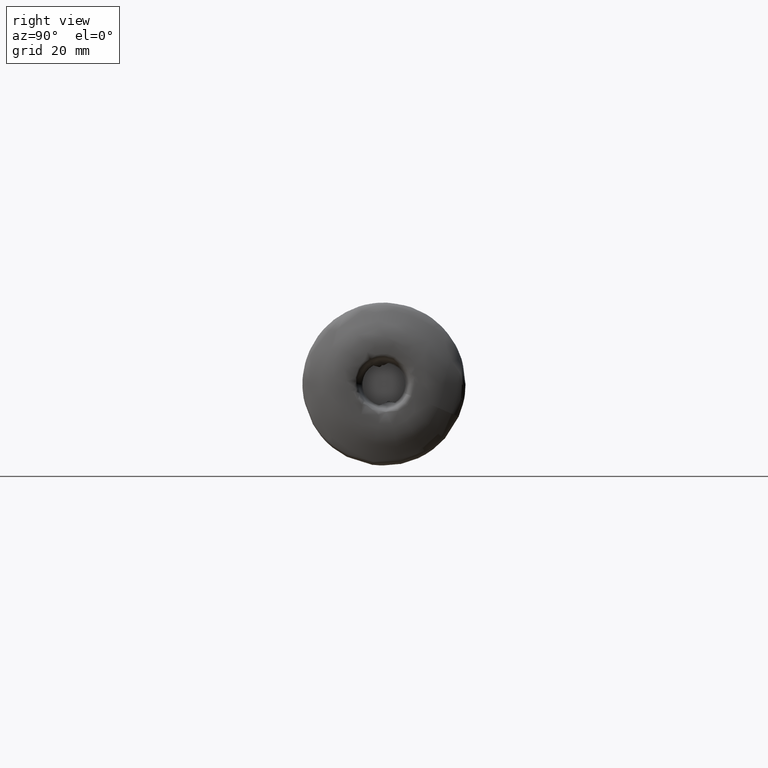
[diagram: clean part render]
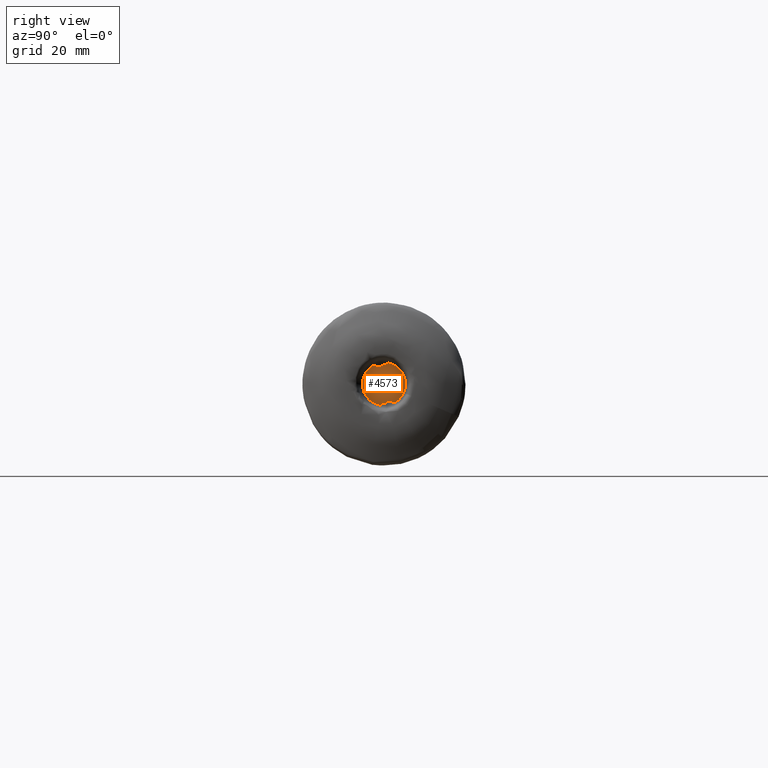
[diagram: same view with one face highlighted and labeled with its STEP entity id]
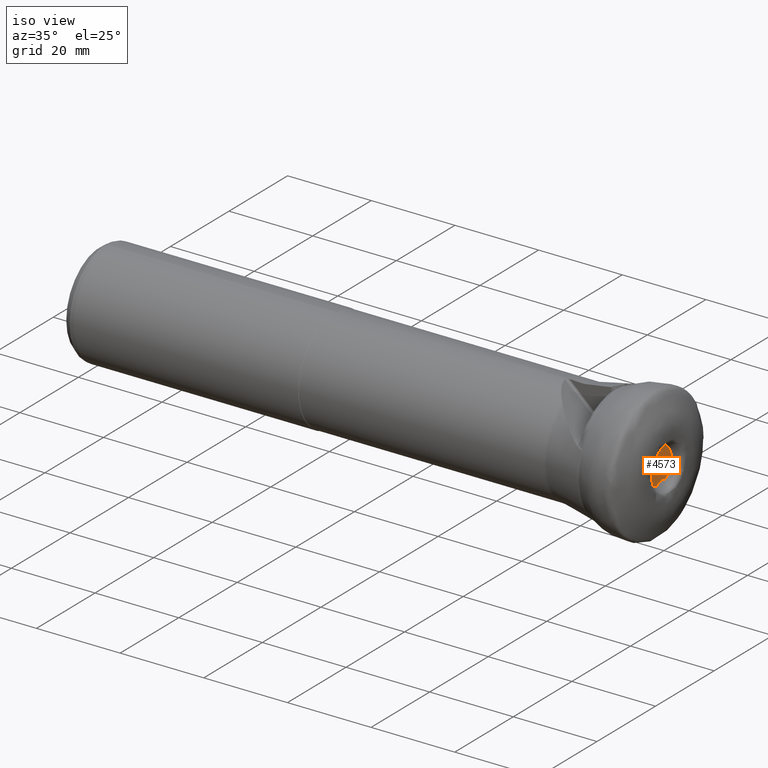
[diagram: same view with one face highlighted and labeled with its STEP entity id]
A machine part, right view. The second image highlights one B-rep face of the part: STEP entity #4573.
A second angle (iso view) of the same face is appended — the face is thin or edge-on in the first view.
In plain terms, the highlighted planar face has unit normal (-1, 0, 0).
Its self-contained STEP definition (entity closure, byte-faithful):
#51 = CARTESIAN_POINT ( 'NONE',  ( -1.155259177039453800, 4.229499999999999800, 0.0000000000000000000 ) ) ;
#104 = DIRECTION ( 'NONE',  ( 0.0000000000000000000, 1.000000000000000000, 0.0000000000000000000 ) ) ;
#177 = ORIENTED_EDGE ( 'NONE', *, *, #4134, .F. ) ;
#215 = EDGE_CURVE ( 'NONE', #5216, #4179, #4383, .T. ) ;
#240 = DIRECTION ( 'NONE',  ( -3.134654851948420700E-033, -1.000000000000000000, 0.0000000000000000000 ) ) ;
#263 = CARTESIAN_POINT ( 'NONE',  ( -1.155259177039453800, -1.057895020233251300, 3.363004518139326700 ) ) ;
#292 = CARTESIAN_POINT ( 'NONE',  ( -1.155259177039453800, 0.3577621035069397700, -3.700133696708830700 ) ) ;
#297 = CARTESIAN_POINT ( 'NONE',  ( -1.155259177039436500, -0.4605350337450229100, 3.663512974220145300 ) ) ;
#340 = CARTESIAN_POINT ( 'NONE',  ( -1.155259177039453600, -0.3577621035069391600, 3.700133696708831600 ) ) ;
#342 = VERTEX_POINT ( 'NONE', #1795 ) ;
#381 = CARTESIAN_POINT ( 'NONE',  ( -1.155259177039453800, -0.5574995362521545400, 3.409578925042161300 ) ) ;
#411 = LINE ( 'NONE', #1369, #2676 ) ;
#413 = CARTESIAN_POINT ( 'NONE',  ( -1.155259177039452700, 0.3219396347229398500, -3.699660229879655000 ) ) ;
#419 = VERTEX_POINT ( 'NONE', #1947 ) ;
#472 = ORIENTED_EDGE ( 'NONE', *, *, #4212, .T. ) ;
#594 = CARTESIAN_POINT ( 'NONE',  ( -1.155259177039453600, 0.5419068643361471000, 4.020709625863943000 ) ) ;
#599 = EDGE_LOOP ( 'NONE', ( #4087, #1148, #2869, #5679, #3941, #2752, #4371, #1103, #5830, #3220, #177, #472, #3172, #1124 ) ) ;
#614 = CARTESIAN_POINT ( 'NONE',  ( -1.155259177039453800, 3.103657154950918400, -3.946597512982972700 ) ) ;
#652 = VECTOR ( 'NONE', #5196, 1000.000000000000100 ) ;
#722 =( BOUNDED_CURVE ( )  B_SPLINE_CURVE ( 3, ( #4602, #3699, #4932, #413 ),
 .UNSPECIFIED., .F., .T. ) 
 B_SPLINE_CURVE_WITH_KNOTS ( ( 4, 4 ),
 ( 5.917845889518014600, 6.642502831510523900 ),
 .UNSPECIFIED. ) 
 CURVE ( )  GEOMETRIC_REPRESENTATION_ITEM ( )  RATIONAL_B_SPLINE_CURVE ( ( 1.000000000000000000, 0.9567160179822417100, 0.9567160179822417100, 1.000000000000000000 ) ) 
 REPRESENTATION_ITEM ( '' )  );
#999 = EDGE_CURVE ( 'NONE', #342, #2275, #3994, .T. ) ;
#1011 = VERTEX_POINT ( 'NONE', #3826 ) ;
#1103 = ORIENTED_EDGE ( 'NONE', *, *, #3354, .F. ) ;
#1124 = ORIENTED_EDGE ( 'NONE', *, *, #2398, .T. ) ;
#1148 = ORIENTED_EDGE ( 'NONE', *, *, #1978, .T. ) ;
#1280 = DIRECTION ( 'NONE',  ( 2.952798561252761600E-033, 0.9419852266725243800, 0.3356543351883196600 ) ) ;
#1313 = CARTESIAN_POINT ( 'NONE',  ( -1.155259177039453800, 2.542767924703493800, 4.733669521630202000 ) ) ;
#1369 = CARTESIAN_POINT ( 'NONE',  ( -1.155259177039453800, 4.179927508716351900, -3.750651391229171700 ) ) ;
#1604 = CIRCLE ( 'NONE', #2830, 4.229499999999999800 ) ;
#1698 = EDGE_CURVE ( 'NONE', #342, #3078, #4257, .T. ) ;
#1735 = LINE ( 'NONE', #4973, #3088 ) ;
#1758 = CARTESIAN_POINT ( 'NONE',  ( -1.155259177039454200, -0.8725339688979579800, -4.138520837584265700 ) ) ;
#1795 = CARTESIAN_POINT ( 'NONE',  ( -1.155259177039436500, -0.4605350337450229100, 3.663512974220145300 ) ) ;
#1874 = VECTOR ( 'NONE', #2081, 1000.000000000000100 ) ;
#1947 = CARTESIAN_POINT ( 'NONE',  ( -1.155259177039454200, 0.8725339688979573100, 4.138520837584265700 ) ) ;
#1978 = EDGE_CURVE ( 'NONE', #2525, #5827, #4699, .T. ) ;
#2028 = VERTEX_POINT ( 'NONE', #3042 ) ;
#2060 =( BOUNDED_CURVE ( )  B_SPLINE_CURVE ( 3, ( #2526, #2445, #2417, #2409 ),
 .UNSPECIFIED., .F., .F. ) 
 B_SPLINE_CURVE_WITH_KNOTS ( ( 4, 4 ),
 ( 5.439867864304302400, 6.904302219309673900 ),
 .UNSPECIFIED. ) 
 CURVE ( )  GEOMETRIC_REPRESENTATION_ITEM ( )  RATIONAL_B_SPLINE_CURVE ( ( 1.000000000000000000, 0.8291293357417108800, 0.8291293357417108800, 1.000000000000000000 ) ) 
 REPRESENTATION_ITEM ( '' )  );
#2074 = EDGE_CURVE ( 'NONE', #2028, #3502, #722, .T. ) ;
#2081 = DIRECTION ( 'NONE',  ( 3.014399828765373000E-033, 0.9616369173440896300, -0.2743254257281971300 ) ) ;
#2275 = VERTEX_POINT ( 'NONE', #4007 ) ;
#2317 = EDGE_CURVE ( 'NONE', #3502, #3068, #411, .T. ) ;
#2353 = DIRECTION ( 'NONE',  ( 1.000000000000000000, -3.134654851948420700E-033, -0.0000000000000000000 ) ) ;
#2398 = EDGE_CURVE ( 'NONE', #4179, #419, #2516, .T. ) ;
#2409 = CARTESIAN_POINT ( 'NONE',  ( -1.155259177039453800, 1.057895020233252700, -3.363004518139326200 ) ) ;
#2417 = CARTESIAN_POINT ( 'NONE',  ( -1.155259177039453800, 0.7976550667737594100, -3.288766066248950600 ) ) ;
#2445 = CARTESIAN_POINT ( 'NONE',  ( -1.155259177039453800, 0.5574995362521542000, -3.409578925042161800 ) ) ;
#2469 = LINE ( 'NONE', #4872, #652 ) ;
#2481 = CARTESIAN_POINT ( 'NONE',  ( -1.155259177039452700, -0.3219396347229396300, 3.699660229879655000 ) ) ;
#2485 = EDGE_CURVE ( 'NONE', #1011, #3788, #1604, .T. ) ;
#2516 = CIRCLE ( 'NONE', #5675, 4.229499999999999800 ) ;
#2525 = VERTEX_POINT ( 'NONE', #594 ) ;
#2526 = CARTESIAN_POINT ( 'NONE',  ( -1.155259177039433100, 0.4605350337450231400, -3.663512974220146200 ) ) ;
#2676 = VECTOR ( 'NONE', #3461, 1000.000000000000200 ) ;
#2734 = CARTESIAN_POINT ( 'NONE',  ( -1.155259177039452700, 0.3219396347229398500, -3.699660229879655000 ) ) ;
#2752 = ORIENTED_EDGE ( 'NONE', *, *, #4608, .T. ) ;
#2753 = CARTESIAN_POINT ( 'NONE',  ( -1.155259177039454700, 2.112850044108244100, -3.663950728532220600 ) ) ;
#2822 = DIRECTION ( 'NONE',  ( -1.000000000000000000, 3.134654851948420700E-033, 0.0000000000000000000 ) ) ;
#2830 = AXIS2_PLACEMENT_3D ( 'NONE', #5841, #2992, #2983 ) ;
#2869 = ORIENTED_EDGE ( 'NONE', *, *, #5357, .T. ) ;
#2924 = CARTESIAN_POINT ( 'NONE',  ( -1.155259177039454700, -6.534835507953070500E-005, 3.695406006121957800 ) ) ;
#2925 = CARTESIAN_POINT ( 'NONE',  ( -1.155259177039452700, -0.3219396347229396300, 3.699660229879655000 ) ) ;
#2932 = CARTESIAN_POINT ( 'NONE',  ( -1.155259177039454700, 0.3009109367780925500, 3.807264136765363000 ) ) ;
#2937 = VECTOR ( 'NONE', #4192, 1000.000000000000100 ) ;
#2948 = CARTESIAN_POINT ( 'NONE',  ( -1.155259177039453600, 0.5419068643361471000, 4.020709625863943000 ) ) ;
#2983 = DIRECTION ( 'NONE',  ( 0.0000000000000000000, 1.000000000000000000, 0.0000000000000000000 ) ) ;
#2992 = DIRECTION ( 'NONE',  ( 1.000000000000000000, -3.134654851948420700E-033, -0.0000000000000000000 ) ) ;
#3042 = CARTESIAN_POINT ( 'NONE',  ( -1.155259177039453600, -0.5419068643361464300, -4.020709625863943000 ) ) ;
#3068 = VERTEX_POINT ( 'NONE', #292 ) ;
#3078 = VERTEX_POINT ( 'NONE', #340 ) ;
#3088 = VECTOR ( 'NONE', #4934, 1000.000000000000200 ) ;
#3109 = DIRECTION ( 'NONE',  ( -2.952798561252761600E-033, -0.9419852266725243800, -0.3356543351883196600 ) ) ;
#3132 = CARTESIAN_POINT ( 'NONE',  ( -1.155259177039453800, 4.963208714227405900, -2.059090847419985600 ) ) ;
#3156 = AXIS2_PLACEMENT_3D ( 'NONE', #51, #2822, #240 ) ;
#3172 = ORIENTED_EDGE ( 'NONE', *, *, #215, .T. ) ;
#3220 = ORIENTED_EDGE ( 'NONE', *, *, #2317, .T. ) ;
#3354 = EDGE_CURVE ( 'NONE', #2028, #3788, #2469, .T. ) ;
#3461 = DIRECTION ( 'NONE',  ( 3.134381091358714700E-033, 0.9999126664329454100, -0.01321588086194062200 ) ) ;
#3502 = VERTEX_POINT ( 'NONE', #2734 ) ;
#3603 = PLANE ( 'NONE',  #3156 ) ;
#3699 = CARTESIAN_POINT ( 'NONE',  ( -1.155259177039454700, -0.3009109367780916600, -3.807264136765362600 ) ) ;
#3741 = CARTESIAN_POINT ( 'NONE',  ( -1.155259177039453800, -0.7976550667737593000, 3.288766066248949700 ) ) ;
#3788 = VERTEX_POINT ( 'NONE', #1758 ) ;
#3826 = CARTESIAN_POINT ( 'NONE',  ( -1.155259177039454700, -2.112850044108244100, 3.663950728532220600 ) ) ;
#3853 = CARTESIAN_POINT ( 'NONE',  ( -1.155259177039453800, 4.718765543848189000, 1.715100990365442200 ) ) ;
#3941 = ORIENTED_EDGE ( 'NONE', *, *, #999, .T. ) ;
#3958 = CARTESIAN_POINT ( 'NONE',  ( -1.155259177039454200, -5.729202682956507300E-031, 0.0000000000000000000 ) ) ;
#3994 =( BOUNDED_CURVE ( )  B_SPLINE_CURVE ( 3, ( #297, #381, #3741, #263 ),
 .UNSPECIFIED., .F., .F. ) 
 B_SPLINE_CURVE_WITH_KNOTS ( ( 4, 4 ),
 ( 5.439867864304304100, 6.904302219309672100 ),
 .UNSPECIFIED. ) 
 CURVE ( )  GEOMETRIC_REPRESENTATION_ITEM ( )  RATIONAL_B_SPLINE_CURVE ( ( 1.000000000000000000, 0.8291293357417117700, 0.8291293357417117700, 1.000000000000000000 ) ) 
 REPRESENTATION_ITEM ( '' )  );
#3995 = VERTEX_POINT ( 'NONE', #4617 ) ;
#4007 = CARTESIAN_POINT ( 'NONE',  ( -1.155259177039453800, -1.057895020233251300, 3.363004518139326700 ) ) ;
#4087 = ORIENTED_EDGE ( 'NONE', *, *, #5965, .F. ) ;
#4132 = LINE ( 'NONE', #3853, #2937 ) ;
#4134 = EDGE_CURVE ( 'NONE', #3995, #3068, #5495, .T. ) ;
#4179 = VERTEX_POINT ( 'NONE', #2753 ) ;
#4192 = DIRECTION ( 'NONE',  ( -3.014399828765373000E-033, -0.9616369173440896300, 0.2743254257281971300 ) ) ;
#4212 = EDGE_CURVE ( 'NONE', #3995, #5216, #2060, .T. ) ;
#4257 = LINE ( 'NONE', #5886, #5368 ) ;
#4371 = ORIENTED_EDGE ( 'NONE', *, *, #2485, .T. ) ;
#4383 = LINE ( 'NONE', #614, #1874 ) ;
#4459 = DIRECTION ( 'NONE',  ( 2.952798561252761600E-033, 0.9419852266725243800, 0.3356543351883196600 ) ) ;
#4562 = VECTOR ( 'NONE', #1280, 1000.000000000000100 ) ;
#4573 = ADVANCED_FACE ( 'NONE', ( #5220 ), #3603, .F. ) ;
#4602 = CARTESIAN_POINT ( 'NONE',  ( -1.155259177039453600, -0.5419068643361464300, -4.020709625863943000 ) ) ;
#4608 = EDGE_CURVE ( 'NONE', #2275, #1011, #4132, .T. ) ;
#4617 = CARTESIAN_POINT ( 'NONE',  ( -1.155259177039433100, 0.4605350337450231400, -3.663512974220146200 ) ) ;
#4699 =( BOUNDED_CURVE ( )  B_SPLINE_CURVE ( 3, ( #2948, #2932, #2924, #2925 ),
 .UNSPECIFIED., .F., .F. ) 
 B_SPLINE_CURVE_WITH_KNOTS ( ( 4, 4 ),
 ( 5.917845889518013700, 6.642502831510523900 ),
 .UNSPECIFIED. ) 
 CURVE ( )  GEOMETRIC_REPRESENTATION_ITEM ( )  RATIONAL_B_SPLINE_CURVE ( ( 1.000000000000000000, 0.9567160179822416000, 0.9567160179822416000, 1.000000000000000000 ) ) 
 REPRESENTATION_ITEM ( '' )  );
#4748 = LINE ( 'NONE', #1313, #4562 ) ;
#4872 = CARTESIAN_POINT ( 'NONE',  ( -1.155259177039453800, 4.963208714227405900, -2.059090847419985600 ) ) ;
#4932 = CARTESIAN_POINT ( 'NONE',  ( -1.155259177039454700, 6.534835507991014800E-005, -3.695406006121957400 ) ) ;
#4934 = DIRECTION ( 'NONE',  ( -3.134381091358714700E-033, -0.9999126664329454100, 0.01321588086194062200 ) ) ;
#4973 = CARTESIAN_POINT ( 'NONE',  ( -1.155259177039453800, 4.277595046514298900, 3.638868018311373700 ) ) ;
#5196 = DIRECTION ( 'NONE',  ( -2.952798561252761600E-033, -0.9419852266725243800, -0.3356543351883196600 ) ) ;
#5216 = VERTEX_POINT ( 'NONE', #5240 ) ;
#5220 = FACE_OUTER_BOUND ( 'NONE', #599, .T. ) ;
#5240 = CARTESIAN_POINT ( 'NONE',  ( -1.155259177039453800, 1.057895020233252700, -3.363004518139326200 ) ) ;
#5357 = EDGE_CURVE ( 'NONE', #5827, #3078, #1735, .T. ) ;
#5368 = VECTOR ( 'NONE', #4459, 1000.000000000000100 ) ;
#5495 = LINE ( 'NONE', #3132, #5889 ) ;
#5675 = AXIS2_PLACEMENT_3D ( 'NONE', #3958, #2353, #104 ) ;
#5679 = ORIENTED_EDGE ( 'NONE', *, *, #1698, .F. ) ;
#5827 = VERTEX_POINT ( 'NONE', #2481 ) ;
#5830 = ORIENTED_EDGE ( 'NONE', *, *, #2074, .T. ) ;
#5841 = CARTESIAN_POINT ( 'NONE',  ( -1.155259177039454200, -5.729202682956507300E-031, 0.0000000000000000000 ) ) ;
#5886 = CARTESIAN_POINT ( 'NONE',  ( -1.155259177039453800, 2.542767924703493800, 4.733669521630202000 ) ) ;
#5889 = VECTOR ( 'NONE', #3109, 1000.000000000000100 ) ;
#5965 = EDGE_CURVE ( 'NONE', #2525, #419, #4748, .T. ) ;